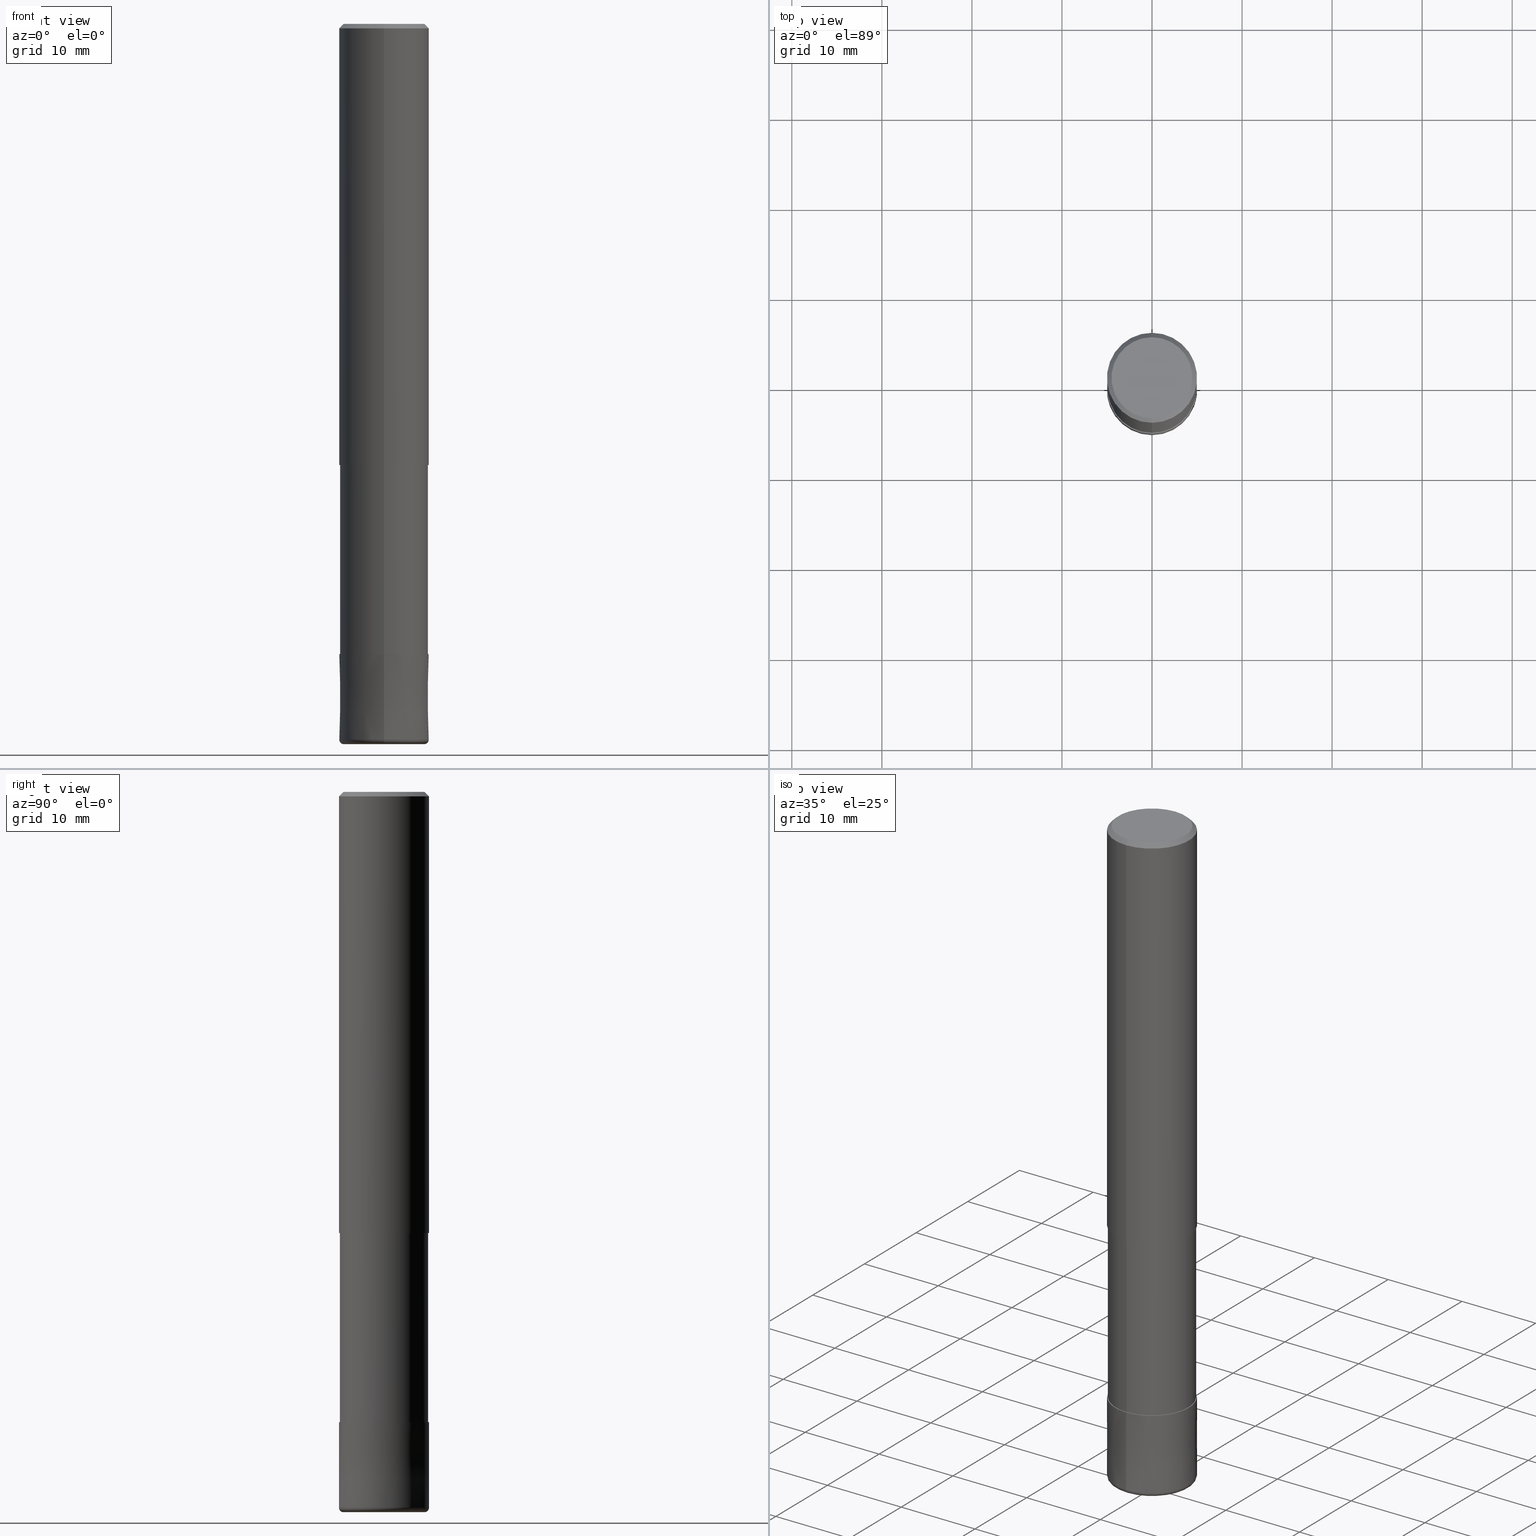
[diagram: canonical four-view strip — front | top / right | iso, engineering-drawing reading convention]
A machine part, canonical four-view strip (front | top / right | iso — engineering-drawing reading convention). The complete STEP part file that produces these views, byte-faithful:
ISO-10303-21;
HEADER;
FILE_DESCRIPTION(('no description'),'unknown implementation level');
FILE_NAME('HHRS6100-05-310-Huellk.stp','  ',('CIMSOURCE GmbH'),('CADClick - KiM GmbH - www.kimweb.de'),'unknown preprocess','ACIS','unknown authorization');
FILE_SCHEMA(('automotive_design'));
ENDSEC;
DATA;
#1=MECHANICAL_DESIGN_GEOMETRIC_PRESENTATION_REPRESENTATION(' ',(#14,#15,#16,#17,#18,#19,#20,#21,#22,#23,#24,#25,#26,#27,#28,#29,#30,#31,#32,#33,#34,#35,#36,#37,#38,#39,#40,#41,#42,#43,#44,#45,#46,#47,#48,#49,#50,#51,#52,#53,#54,#55,#56,#57,#58,#59,#60,#61,#62,#63,#64,#65,#66,#67,#68,#69,#70,#71,#72,#73,#74,#75,#76,#77,#78,#79,#80,#81,#82,#83,#84,#85,#86,#87,#88,#89,#90,#91,#92,#93,#94,#95,#96,#97),#10);
#2=PRODUCT_DEFINITION_CONTEXT('',#98,'design');
#3=APPLICATION_PROTOCOL_DEFINITION('INTERNATIONAL STANDARD','automotive_design',1994,#98);
#4=PRODUCT_CATEGORY_RELATIONSHIP('NONE','NONE',#99,#100);
#5=SHAPE_DEFINITION_REPRESENTATION(#101,#102);
#6=PRODUCT_DEFINITION_CONTEXT('',#103,'design');
#7=APPLICATION_PROTOCOL_DEFINITION('INTERNATIONAL STANDARD','automotive_design',1994,#103);
#8=PRODUCT_CATEGORY_RELATIONSHIP('NONE','NONE',#104,#105);
#9=SHAPE_DEFINITION_REPRESENTATION(#106,#107);
#10= (GEOMETRIC_REPRESENTATION_CONTEXT(3)GLOBAL_UNCERTAINTY_ASSIGNED_CONTEXT((#110))GLOBAL_UNIT_ASSIGNED_CONTEXT((#112,#113,#114))REPRESENTATION_CONTEXT('NONE','WORKSPACE'));
#14=STYLED_ITEM('',(#116),#117);
#15=STYLED_ITEM('',(#118),#119);
#16=STYLED_ITEM('',(#120),#121);
#17=STYLED_ITEM('',(#122),#123);
#18=STYLED_ITEM('',(#124),#125);
#19=STYLED_ITEM('',(#126),#127);
#20=STYLED_ITEM('',(#128),#129);
#21=STYLED_ITEM('',(#130),#131);
#22=STYLED_ITEM('',(#132),#133);
#23=STYLED_ITEM('',(#134),#135);
#24=STYLED_ITEM('',(#136),#137);
#25=STYLED_ITEM('',(#138),#139);
#26=STYLED_ITEM('',(#140),#141);
#27=STYLED_ITEM('',(#142),#143);
#28=STYLED_ITEM('',(#144),#145);
#29=STYLED_ITEM('',(#146),#147);
#30=STYLED_ITEM('',(#148),#149);
#31=STYLED_ITEM('',(#150),#151);
#32=STYLED_ITEM('',(#152),#153);
#33=STYLED_ITEM('',(#154),#155);
#34=STYLED_ITEM('',(#156),#157);
#35=STYLED_ITEM('',(#158),#159);
#36=STYLED_ITEM('',(#160),#161);
#37=STYLED_ITEM('',(#162),#163);
#38=STYLED_ITEM('',(#164),#165);
#39=STYLED_ITEM('',(#166),#167);
#40=STYLED_ITEM('',(#168),#169);
#41=STYLED_ITEM('',(#170),#171);
#42=STYLED_ITEM('',(#172),#173);
#43=STYLED_ITEM('',(#174),#175);
#44=STYLED_ITEM('',(#176),#177);
#45=STYLED_ITEM('',(#178),#179);
#46=STYLED_ITEM('',(#180),#181);
#47=STYLED_ITEM('',(#182),#183);
#48=STYLED_ITEM('',(#184),#185);
#49=STYLED_ITEM('',(#186),#187);
#50=STYLED_ITEM('',(#188),#189);
#51=STYLED_ITEM('',(#190),#191);
#52=STYLED_ITEM('',(#192),#193);
#53=STYLED_ITEM('',(#194),#195);
#54=STYLED_ITEM('',(#196),#197);
#55=STYLED_ITEM('',(#198),#199);
#56=STYLED_ITEM('',(#200),#201);
#57=STYLED_ITEM('',(#202),#203);
#58=STYLED_ITEM('',(#204),#205);
#59=STYLED_ITEM('',(#206),#207);
#60=STYLED_ITEM('',(#208),#209);
#61=STYLED_ITEM('',(#210),#211);
#62=STYLED_ITEM('',(#212),#213);
#63=STYLED_ITEM('',(#214),#215);
#64=STYLED_ITEM('',(#216),#217);
#65=STYLED_ITEM('',(#218),#219);
#66=STYLED_ITEM('',(#220),#221);
#67=STYLED_ITEM('',(#222),#223);
#68=STYLED_ITEM('',(#224),#225);
#69=STYLED_ITEM('',(#226),#227);
#70=STYLED_ITEM('',(#228),#229);
#71=STYLED_ITEM('',(#230),#231);
#72=STYLED_ITEM('',(#232),#233);
#73=STYLED_ITEM('',(#234),#235);
#74=STYLED_ITEM('',(#236),#237);
#75=STYLED_ITEM('',(#238),#239);
#76=STYLED_ITEM('',(#240),#241);
#77=STYLED_ITEM('',(#242),#243);
#78=STYLED_ITEM('',(#244),#245);
#79=STYLED_ITEM('',(#246),#247);
#80=STYLED_ITEM('',(#248),#249);
#81=STYLED_ITEM('',(#250),#251);
#82=STYLED_ITEM('',(#252),#253);
#83=STYLED_ITEM('',(#254),#255);
#84=STYLED_ITEM('',(#256),#257);
#85=STYLED_ITEM('',(#258),#259);
#86=STYLED_ITEM('',(#260),#261);
#87=STYLED_ITEM('',(#262),#263);
#88=STYLED_ITEM('',(#264),#265);
#89=STYLED_ITEM('',(#266),#267);
#90=STYLED_ITEM('',(#268),#269);
#91=STYLED_ITEM('',(#270),#271);
#92=STYLED_ITEM('',(#272),#273);
#93=STYLED_ITEM('',(#274),#275);
#94=STYLED_ITEM('',(#276),#277);
#95=STYLED_ITEM('',(#278),#279);
#96=STYLED_ITEM('',(#280),#281);
#97=STYLED_ITEM('',(#282),#283);
#98=APPLICATION_CONTEXT(' ');
#99=PRODUCT_CATEGORY('part','NONE');
#100=PRODUCT_RELATED_PRODUCT_CATEGORY('detail',' ',(#284));
#101=PRODUCT_DEFINITION_SHAPE('NONE','NONE',#285);
#102=ADVANCED_BREP_SHAPE_REPRESENTATION('1',(#125,#286),#10);
#103=APPLICATION_CONTEXT(' ');
#104=PRODUCT_CATEGORY('part','NONE');
#105=PRODUCT_RELATED_PRODUCT_CATEGORY('detail',' ',(#287));
#106=PRODUCT_DEFINITION_SHAPE('NONE','NONE',#288);
#107=ADVANCED_BREP_SHAPE_REPRESENTATION('2',(#223,#289),#10);
#110=UNCERTAINTY_MEASURE_WITH_UNIT(LENGTH_MEASURE(1.0E-006),#112,'','');
#112= (CONVERSION_BASED_UNIT('MILLIMETRE',#292)LENGTH_UNIT()NAMED_UNIT(#295));
#113= (NAMED_UNIT(#297)PLANE_ANGLE_UNIT()SI_UNIT($,.RADIAN.));
#114= (NAMED_UNIT(#297)SOLID_ANGLE_UNIT()SI_UNIT($,.STERADIAN.));
#116=PRESENTATION_STYLE_ASSIGNMENT((#303));
#117=VERTEX_POINT('',#304);
#118=PRESENTATION_STYLE_ASSIGNMENT((#305));
#119=VERTEX_POINT('',#306);
#120=PRESENTATION_STYLE_ASSIGNMENT((#307));
#121=EDGE_CURVE('',#151,#259,#308,.T.);
#122=PRESENTATION_STYLE_ASSIGNMENT((#309));
#123=ADVANCED_FACE('',(#310),#311,.T.);
#124=PRESENTATION_STYLE_ASSIGNMENT((#312));
#125=MANIFOLD_SOLID_BREP('1',#313);
#126=PRESENTATION_STYLE_ASSIGNMENT((#314));
#127=ADVANCED_FACE('',(#315),#316,.T.);
#128=PRESENTATION_STYLE_ASSIGNMENT((#317));
#129=ADVANCED_FACE('',(#318),#319,.T.);
#130=PRESENTATION_STYLE_ASSIGNMENT((#320));
#131=EDGE_CURVE('',#151,#273,#321,.T.);
#132=PRESENTATION_STYLE_ASSIGNMENT((#322));
#133=EDGE_CURVE('',#259,#151,#323,.T.);
#134=PRESENTATION_STYLE_ASSIGNMENT((#324));
#135=EDGE_CURVE('',#265,#235,#325,.T.);
#136=PRESENTATION_STYLE_ASSIGNMENT((#326));
#137=EDGE_CURVE('',#217,#259,#327,.T.);
#138=PRESENTATION_STYLE_ASSIGNMENT((#328));
#139=VERTEX_POINT('',#329);
#140=PRESENTATION_STYLE_ASSIGNMENT((#330));
#141=EDGE_CURVE('',#203,#241,#331,.T.);
#142=PRESENTATION_STYLE_ASSIGNMENT((#332));
#143=EDGE_CURVE('',#281,#173,#333,.T.);
#144=PRESENTATION_STYLE_ASSIGNMENT((#334));
#145=EDGE_CURVE('',#217,#273,#335,.T.);
#146=PRESENTATION_STYLE_ASSIGNMENT((#336));
#147=EDGE_CURVE('',#283,#241,#337,.T.);
#148=PRESENTATION_STYLE_ASSIGNMENT((#338));
#149=EDGE_CURVE('',#139,#205,#339,.T.);
#150=PRESENTATION_STYLE_ASSIGNMENT((#340));
#151=VERTEX_POINT('',#341);
#152=PRESENTATION_STYLE_ASSIGNMENT((#342));
#153=EDGE_CURVE('',#247,#279,#343,.T.);
#154=PRESENTATION_STYLE_ASSIGNMENT((#344));
#155=VERTEX_POINT('',#345);
#156=PRESENTATION_STYLE_ASSIGNMENT((#346));
#157=VERTEX_POINT('',#347);
#158=PRESENTATION_STYLE_ASSIGNMENT((#348));
#159=EDGE_CURVE('',#157,#235,#349,.T.);
#160=PRESENTATION_STYLE_ASSIGNMENT((#350));
#161=ADVANCED_FACE('',(#351),#352,.F.);
#162=PRESENTATION_STYLE_ASSIGNMENT((#353));
#163=EDGE_CURVE('',#279,#247,#354,.T.);
#164=PRESENTATION_STYLE_ASSIGNMENT((#355));
#165=ADVANCED_FACE('',(#356),#357,.T.);
#166=PRESENTATION_STYLE_ASSIGNMENT((#358));
#167=EDGE_CURVE('',#173,#281,#359,.T.);
#168=PRESENTATION_STYLE_ASSIGNMENT((#360));
#169=EDGE_CURVE('',#203,#187,#361,.T.);
#170=PRESENTATION_STYLE_ASSIGNMENT((#362));
#171=EDGE_CURVE('',#249,#157,#363,.T.);
#172=PRESENTATION_STYLE_ASSIGNMENT((#364));
#173=VERTEX_POINT('',#365);
#174=PRESENTATION_STYLE_ASSIGNMENT((#366));
#175=ADVANCED_FACE('',(#367),#368,.T.);
#176=PRESENTATION_STYLE_ASSIGNMENT((#369));
#177=VERTEX_POINT('',#370);
#178=PRESENTATION_STYLE_ASSIGNMENT((#371));
#179=EDGE_CURVE('',#117,#173,#372,.T.);
#180=PRESENTATION_STYLE_ASSIGNMENT((#373));
#181=ADVANCED_FACE('',(#374),#375,.T.);
#182=PRESENTATION_STYLE_ASSIGNMENT((#376));
#183=EDGE_CURVE('',#187,#283,#377,.T.);
#184=PRESENTATION_STYLE_ASSIGNMENT((#378));
#185=VERTEX_POINT('',#379);
#186=PRESENTATION_STYLE_ASSIGNMENT((#380));
#187=VERTEX_POINT('',#381);
#188=PRESENTATION_STYLE_ASSIGNMENT((#382));
#189=EDGE_CURVE('',#273,#155,#383,.T.);
#190=PRESENTATION_STYLE_ASSIGNMENT((#384));
#191=ADVANCED_FACE('',(#385),#386,.T.);
#192=PRESENTATION_STYLE_ASSIGNMENT((#387));
#193=EDGE_CURVE('',#119,#247,#388,.T.);
#194=PRESENTATION_STYLE_ASSIGNMENT((#389));
#195=EDGE_CURVE('',#117,#251,#390,.T.);
#196=PRESENTATION_STYLE_ASSIGNMENT((#391));
#197=EDGE_CURVE('',#283,#139,#392,.T.);
#198=PRESENTATION_STYLE_ASSIGNMENT((#393));
#199=EDGE_CURVE('',#119,#177,#394,.T.);
#200=PRESENTATION_STYLE_ASSIGNMENT((#395));
#201=EDGE_CURVE('',#265,#249,#396,.T.);
#202=PRESENTATION_STYLE_ASSIGNMENT((#397));
#203=VERTEX_POINT('',#398);
#204=PRESENTATION_STYLE_ASSIGNMENT((#399));
#205=VERTEX_POINT('',#400);
#206=PRESENTATION_STYLE_ASSIGNMENT((#401));
#207=EDGE_CURVE('',#283,#187,#402,.T.);
#208=PRESENTATION_STYLE_ASSIGNMENT((#403));
#209=ADVANCED_FACE('',(#404),#405,.T.);
#210=PRESENTATION_STYLE_ASSIGNMENT((#406));
#211=EDGE_CURVE('',#251,#117,#407,.T.);
#212=PRESENTATION_STYLE_ASSIGNMENT((#408));
#213=ADVANCED_FACE('',(#409,#410),#411,.T.);
#214=PRESENTATION_STYLE_ASSIGNMENT((#412));
#215=EDGE_CURVE('',#279,#177,#413,.T.);
#216=PRESENTATION_STYLE_ASSIGNMENT((#414));
#217=VERTEX_POINT('',#415);
#218=PRESENTATION_STYLE_ASSIGNMENT((#416));
#219=EDGE_CURVE('',#155,#185,#417,.T.);
#220=PRESENTATION_STYLE_ASSIGNMENT((#418));
#221=ADVANCED_FACE('',(#419),#420,.T.);
#222=PRESENTATION_STYLE_ASSIGNMENT((#421));
#223=MANIFOLD_SOLID_BREP('2',#422);
#224=PRESENTATION_STYLE_ASSIGNMENT((#423));
#225=EDGE_CURVE('',#177,#119,#424,.T.);
#226=PRESENTATION_STYLE_ASSIGNMENT((#425));
#227=EDGE_CURVE('',#185,#155,#426,.T.);
#228=PRESENTATION_STYLE_ASSIGNMENT((#427));
#229=ADVANCED_FACE('',(#428),#429,.T.);
#230=PRESENTATION_STYLE_ASSIGNMENT((#430));
#231=EDGE_CURVE('',#281,#251,#431,.T.);
#232=PRESENTATION_STYLE_ASSIGNMENT((#432));
#233=EDGE_CURVE('',#235,#265,#433,.T.);
#234=PRESENTATION_STYLE_ASSIGNMENT((#434));
#235=VERTEX_POINT('',#435);
#236=PRESENTATION_STYLE_ASSIGNMENT((#436));
#237=ADVANCED_FACE('',(#437,#438),#439,.T.);
#238=PRESENTATION_STYLE_ASSIGNMENT((#440));
#239=EDGE_CURVE('',#273,#217,#441,.T.);
#240=PRESENTATION_STYLE_ASSIGNMENT((#442));
#241=VERTEX_POINT('',#443);
#242=PRESENTATION_STYLE_ASSIGNMENT((#444));
#243=EDGE_CURVE('',#205,#187,#445,.T.);
#244=PRESENTATION_STYLE_ASSIGNMENT((#446));
#245=ADVANCED_FACE('',(#447,#448),#449,.T.);
#246=PRESENTATION_STYLE_ASSIGNMENT((#450));
#247=VERTEX_POINT('',#451);
#248=PRESENTATION_STYLE_ASSIGNMENT((#452));
#249=VERTEX_POINT('',#453);
#250=PRESENTATION_STYLE_ASSIGNMENT((#454));
#251=VERTEX_POINT('',#455);
#252=PRESENTATION_STYLE_ASSIGNMENT((#456));
#253=EDGE_CURVE('',#157,#249,#457,.T.);
#254=PRESENTATION_STYLE_ASSIGNMENT((#458));
#255=ADVANCED_FACE('',(#459),#460,.T.);
#256=PRESENTATION_STYLE_ASSIGNMENT((#461));
#257=ADVANCED_FACE('',(#462),#463,.T.);
#258=PRESENTATION_STYLE_ASSIGNMENT((#464));
#259=VERTEX_POINT('',#465);
#260=PRESENTATION_STYLE_ASSIGNMENT((#466));
#261=ADVANCED_FACE('',(#467),#468,.T.);
#262=PRESENTATION_STYLE_ASSIGNMENT((#469));
#263=ADVANCED_FACE('',(#470),#471,.T.);
#264=PRESENTATION_STYLE_ASSIGNMENT((#472));
#265=VERTEX_POINT('',#473);
#266=PRESENTATION_STYLE_ASSIGNMENT((#474));
#267=ADVANCED_FACE('',(#475),#476,.F.);
#268=PRESENTATION_STYLE_ASSIGNMENT((#477));
#269=EDGE_CURVE('',#241,#203,#478,.T.);
#270=PRESENTATION_STYLE_ASSIGNMENT((#479));
#271=ADVANCED_FACE('',(#480,#481),#482,.T.);
#272=PRESENTATION_STYLE_ASSIGNMENT((#483));
#273=VERTEX_POINT('',#484);
#274=PRESENTATION_STYLE_ASSIGNMENT((#485));
#275=EDGE_CURVE('',#185,#217,#486,.T.);
#276=PRESENTATION_STYLE_ASSIGNMENT((#487));
#277=EDGE_CURVE('',#205,#139,#488,.T.);
#278=PRESENTATION_STYLE_ASSIGNMENT((#489));
#279=VERTEX_POINT('',#490);
#280=PRESENTATION_STYLE_ASSIGNMENT((#491));
#281=VERTEX_POINT('',#492);
#282=PRESENTATION_STYLE_ASSIGNMENT((#493));
#283=VERTEX_POINT('',#494);
#284=PRODUCT('1','1','PART-1-DESC',(#495));
#285=PRODUCT_DEFINITION('NONE','NONE',#496,#2);
#286=AXIS2_PLACEMENT_3D('',#497,#498,#499);
#287=PRODUCT('2','2','PART-2-DESC',(#500));
#288=PRODUCT_DEFINITION('NONE','NONE',#501,#6);
#289=AXIS2_PLACEMENT_3D('',#502,#503,#504);
#292=LENGTH_MEASURE_WITH_UNIT(LENGTH_MEASURE(1.0),#505);
#295=DIMENSIONAL_EXPONENTS(1.0,0.0,0.0,0.0,0.0,0.0,0.0);
#297=DIMENSIONAL_EXPONENTS(0.0,0.0,0.0,0.0,0.0,0.0,0.0);
#303=POINT_STYLE(' ',#506,POSITIVE_LENGTH_MEASURE(1.0E-006),#507);
#304=CARTESIAN_POINT('',(0.0,4.90495,-49.0));
#305=POINT_STYLE(' ',#508,POSITIVE_LENGTH_MEASURE(1.0E-006),#509);
#306=CARTESIAN_POINT('',(2.75536429610035E-016,-2.25,-79.8));
#307=CURVE_STYLE('',#510,POSITIVE_LENGTH_MEASURE(1.0E-006),#511);
#308=CIRCLE('',#512,4.5);
#309=SURFACE_STYLE_USAGE(.BOTH.,#513);
#310=FACE_OUTER_BOUND('',#514,.T.);
#311=PLANE('',#515);
#312=SURFACE_STYLE_USAGE(.BOTH.,#516);
#313=CLOSED_SHELL('',(#263,#209,#257,#165,#271,#191,#255,#175,#261,#213,#129,#123));
#314=SURFACE_STYLE_USAGE(.BOTH.,#517);
#315=FACE_OUTER_BOUND('',#518,.T.);
#316=CONICAL_SURFACE('',#519,4.99995,1.05263157890604E-005);
#317=SURFACE_STYLE_USAGE(.BOTH.,#520);
#318=FACE_OUTER_BOUND('',#521,.T.);
#319=CYLINDRICAL_SURFACE('',#522,2.25);
#320=CURVE_STYLE('',#523,POSITIVE_LENGTH_MEASURE(1.0E-006),#524);
#321=LINE('',#525,#526);
#322=CURVE_STYLE('',#527,POSITIVE_LENGTH_MEASURE(1.0E-006),#528);
#323=CIRCLE('',#529,4.5);
#324=CURVE_STYLE('',#530,POSITIVE_LENGTH_MEASURE(1.0E-006),#531);
#325=CIRCLE('',#532,2.25);
#326=CURVE_STYLE('',#533,POSITIVE_LENGTH_MEASURE(1.0E-006),#534);
#327=LINE('',#535,#536);
#328=POINT_STYLE(' ',#537,POSITIVE_LENGTH_MEASURE(1.0E-006),#538);
#329=CARTESIAN_POINT('',(6.1229093084765E-016,-4.9999,-70.0));
#330=CURVE_STYLE('',#539,POSITIVE_LENGTH_MEASURE(1.0E-006),#540);
#331=CIRCLE('',#541,4.5);
#332=CURVE_STYLE('',#542,POSITIVE_LENGTH_MEASURE(1.0E-006),#543);
#333=CIRCLE('',#544,4.90495);
#334=CURVE_STYLE('',#545,POSITIVE_LENGTH_MEASURE(1.0E-006),#546);
#335=CIRCLE('',#547,5.0);
#336=CURVE_STYLE('',#548,POSITIVE_LENGTH_MEASURE(1.0E-006),#549);
#337=CIRCLE('',#550,0.499999999999995);
#338=CURVE_STYLE('',#551,POSITIVE_LENGTH_MEASURE(1.0E-006),#552);
#339=CIRCLE('',#553,4.9999);
#340=POINT_STYLE(' ',#554,POSITIVE_LENGTH_MEASURE(1.0E-006),#555);
#341=CARTESIAN_POINT('',(0.0,4.5,0.0));
#342=CURVE_STYLE('',#556,POSITIVE_LENGTH_MEASURE(1.0E-006),#557);
#343=CIRCLE('',#558,2.25);
#344=POINT_STYLE(' ',#559,POSITIVE_LENGTH_MEASURE(1.0E-006),#560);
#345=CARTESIAN_POINT('',(0.0,5.0,-49.0));
#346=POINT_STYLE(' ',#561,POSITIVE_LENGTH_MEASURE(1.0E-006),#562);
#347=CARTESIAN_POINT('',(2.75536429610035E-016,-2.25,-80.0));
#348=CURVE_STYLE('',#563,POSITIVE_LENGTH_MEASURE(1.0E-006),#564);
#349=LINE('',#565,#566);
#350=SURFACE_STYLE_USAGE(.BOTH.,#567);
#351=FACE_OUTER_BOUND('',#568,.T.);
#352=CYLINDRICAL_SURFACE('',#569,2.25);
#353=CURVE_STYLE('',#570,POSITIVE_LENGTH_MEASURE(1.0E-006),#571);
#354=CIRCLE('',#572,2.25);
#355=SURFACE_STYLE_USAGE(.BOTH.,#573);
#356=FACE_OUTER_BOUND('',#574,.T.);
#357=CONICAL_SURFACE('',#575,4.75,0.785398163397448);
#358=CURVE_STYLE('',#576,POSITIVE_LENGTH_MEASURE(1.0E-006),#577);
#359=CIRCLE('',#578,4.90495);
#360=CURVE_STYLE('',#579,POSITIVE_LENGTH_MEASURE(1.0E-006),#580);
#361=CIRCLE('',#581,0.499999999999995);
#362=CURVE_STYLE('',#582,POSITIVE_LENGTH_MEASURE(1.0E-006),#583);
#363=CIRCLE('',#584,2.25);
#364=POINT_STYLE(' ',#585,POSITIVE_LENGTH_MEASURE(1.0E-006),#586);
#365=CARTESIAN_POINT('',(0.0,4.90495,-70.0));
#366=SURFACE_STYLE_USAGE(.BOTH.,#587);
#367=FACE_OUTER_BOUND('',#588,.T.);
#368=CYLINDRICAL_SURFACE('',#589,5.0);
#369=POINT_STYLE(' ',#590,POSITIVE_LENGTH_MEASURE(1.0E-006),#591);
#370=CARTESIAN_POINT('',(0.0,2.25,-79.8));
#371=CURVE_STYLE('',#592,POSITIVE_LENGTH_MEASURE(1.0E-006),#593);
#372=LINE('',#594,#595);
#373=SURFACE_STYLE_USAGE(.BOTH.,#596);
#374=FACE_OUTER_BOUND('',#597,.T.);
#375=TOROIDAL_SURFACE('',#598,4.5,0.499999999999995);
#376=CURVE_STYLE('',#599,POSITIVE_LENGTH_MEASURE(1.0E-006),#600);
#377=CIRCLE('',#601,5.0);
#378=POINT_STYLE(' ',#602,POSITIVE_LENGTH_MEASURE(1.0E-006),#603);
#379=CARTESIAN_POINT('',(6.12303176911189E-016,-5.0,-49.0));
#380=POINT_STYLE(' ',#604,POSITIVE_LENGTH_MEASURE(1.0E-006),#605);
#381=CARTESIAN_POINT('',(0.0,5.0,-79.5));
#382=CURVE_STYLE('',#606,POSITIVE_LENGTH_MEASURE(1.0E-006),#607);
#383=LINE('',#608,#609);
#384=SURFACE_STYLE_USAGE(.BOTH.,#610);
#385=FACE_OUTER_BOUND('',#611,.T.);
#386=PLANE('',#612);
#387=CURVE_STYLE('',#613,POSITIVE_LENGTH_MEASURE(1.0E-006),#614);
#388=LINE('',#615,#616);
#389=CURVE_STYLE('',#617,POSITIVE_LENGTH_MEASURE(1.0E-006),#618);
#390=CIRCLE('',#619,4.90495);
#391=CURVE_STYLE('',#620,POSITIVE_LENGTH_MEASURE(1.0E-006),#621);
#392=LINE('',#622,#623);
#393=CURVE_STYLE('',#624,POSITIVE_LENGTH_MEASURE(1.0E-006),#625);
#394=CIRCLE('',#626,2.25);
#395=CURVE_STYLE('',#627,POSITIVE_LENGTH_MEASURE(1.0E-006),#628);
#396=LINE('',#629,#630);
#397=POINT_STYLE(' ',#631,POSITIVE_LENGTH_MEASURE(1.0E-006),#632);
#398=CARTESIAN_POINT('',(0.0,4.5,-80.0));
#399=POINT_STYLE(' ',#633,POSITIVE_LENGTH_MEASURE(1.0E-006),#634);
#400=CARTESIAN_POINT('',(0.0,4.9999,-70.0));
#401=CURVE_STYLE('',#635,POSITIVE_LENGTH_MEASURE(1.0E-006),#636);
#402=CIRCLE('',#637,5.0);
#403=SURFACE_STYLE_USAGE(.BOTH.,#638);
#404=FACE_OUTER_BOUND('',#639,.T.);
#405=CYLINDRICAL_SURFACE('',#640,4.90495);
#406=CURVE_STYLE('',#641,POSITIVE_LENGTH_MEASURE(1.0E-006),#642);
#407=CIRCLE('',#643,4.90495);
#408=SURFACE_STYLE_USAGE(.BOTH.,#644);
#409=FACE_BOUND('',#645,.T.);
#410=FACE_OUTER_BOUND('',#646,.T.);
#411=PLANE('',#647);
#412=CURVE_STYLE('',#648,POSITIVE_LENGTH_MEASURE(1.0E-006),#649);
#413=LINE('',#650,#651);
#414=POINT_STYLE(' ',#652,POSITIVE_LENGTH_MEASURE(1.0E-006),#653);
#415=CARTESIAN_POINT('',(6.12303176911189E-016,-5.0,-0.5));
#416=CURVE_STYLE('',#654,POSITIVE_LENGTH_MEASURE(1.0E-006),#655);
#417=CIRCLE('',#656,5.0);
#418=SURFACE_STYLE_USAGE(.BOTH.,#657);
#419=FACE_OUTER_BOUND('',#658,.T.);
#420=TOROIDAL_SURFACE('',#659,4.5,0.499999999999995);
#421=SURFACE_STYLE_USAGE(.BOTH.,#660);
#422=CLOSED_SHELL('',(#267,#181,#127,#245,#229,#221,#237,#161));
#423=CURVE_STYLE('',#661,POSITIVE_LENGTH_MEASURE(1.0E-006),#662);
#424=CIRCLE('',#663,2.25);
#425=CURVE_STYLE('',#664,POSITIVE_LENGTH_MEASURE(1.0E-006),#665);
#426=CIRCLE('',#666,5.0);
#427=SURFACE_STYLE_USAGE(.BOTH.,#667);
#428=FACE_OUTER_BOUND('',#668,.T.);
#429=CONICAL_SURFACE('',#669,4.99995,1.05263157890604E-005);
#430=CURVE_STYLE('',#670,POSITIVE_LENGTH_MEASURE(1.0E-006),#671);
#431=LINE('',#672,#673);
#432=CURVE_STYLE('',#674,POSITIVE_LENGTH_MEASURE(1.0E-006),#675);
#433=CIRCLE('',#676,2.25);
#434=POINT_STYLE(' ',#677,POSITIVE_LENGTH_MEASURE(1.0E-006),#678);
#435=CARTESIAN_POINT('',(2.75536429610035E-016,-2.25,-70.0));
#436=SURFACE_STYLE_USAGE(.BOTH.,#679);
#437=FACE_BOUND('',#680,.T.);
#438=FACE_OUTER_BOUND('',#681,.T.);
#439=PLANE('',#682);
#440=CURVE_STYLE('',#683,POSITIVE_LENGTH_MEASURE(1.0E-006),#684);
#441=CIRCLE('',#685,5.0);
#442=POINT_STYLE(' ',#686,POSITIVE_LENGTH_MEASURE(1.0E-006),#687);
#443=CARTESIAN_POINT('',(5.5107285922007E-016,-4.5,-80.0));
#444=CURVE_STYLE('',#688,POSITIVE_LENGTH_MEASURE(1.0E-006),#689);
#445=LINE('',#690,#691);
#446=SURFACE_STYLE_USAGE(.BOTH.,#692);
#447=FACE_OUTER_BOUND('',#693,.T.);
#448=FACE_BOUND('',#694,.T.);
#449=PLANE('',#695);
#450=POINT_STYLE(' ',#696,POSITIVE_LENGTH_MEASURE(1.0E-006),#697);
#451=CARTESIAN_POINT('',(2.75536429610035E-016,-2.25,-70.0));
#452=POINT_STYLE(' ',#698,POSITIVE_LENGTH_MEASURE(1.0E-006),#699);
#453=CARTESIAN_POINT('',(0.0,2.25,-80.0));
#454=POINT_STYLE(' ',#700,POSITIVE_LENGTH_MEASURE(1.0E-006),#701);
#455=CARTESIAN_POINT('',(6.00663293518107E-016,-4.90495,-49.0));
#456=CURVE_STYLE('',#702,POSITIVE_LENGTH_MEASURE(1.0E-006),#703);
#457=CIRCLE('',#704,2.25);
#458=SURFACE_STYLE_USAGE(.BOTH.,#705);
#459=FACE_OUTER_BOUND('',#706,.T.);
#460=CONICAL_SURFACE('',#707,4.75,0.785398163397448);
#461=SURFACE_STYLE_USAGE(.BOTH.,#708);
#462=FACE_OUTER_BOUND('',#709,.T.);
#463=CYLINDRICAL_SURFACE('',#710,5.0);
#464=POINT_STYLE(' ',#711,POSITIVE_LENGTH_MEASURE(1.0E-006),#712);
#465=CARTESIAN_POINT('',(5.5107285922007E-016,-4.5,0.0));
#466=SURFACE_STYLE_USAGE(.BOTH.,#713);
#467=FACE_OUTER_BOUND('',#714,.T.);
#468=CYLINDRICAL_SURFACE('',#715,4.90495);
#469=SURFACE_STYLE_USAGE(.BOTH.,#716);
#470=FACE_OUTER_BOUND('',#717,.T.);
#471=CYLINDRICAL_SURFACE('',#718,2.25);
#472=POINT_STYLE(' ',#719,POSITIVE_LENGTH_MEASURE(1.0E-006),#720);
#473=CARTESIAN_POINT('',(0.0,2.25,-70.0));
#474=SURFACE_STYLE_USAGE(.BOTH.,#721);
#475=FACE_OUTER_BOUND('',#722,.T.);
#476=CYLINDRICAL_SURFACE('',#723,2.25);
#477=CURVE_STYLE('',#724,POSITIVE_LENGTH_MEASURE(1.0E-006),#725);
#478=CIRCLE('',#726,4.5);
#479=SURFACE_STYLE_USAGE(.BOTH.,#727);
#480=FACE_OUTER_BOUND('',#728,.T.);
#481=FACE_BOUND('',#729,.T.);
#482=PLANE('',#730);
#483=POINT_STYLE(' ',#731,POSITIVE_LENGTH_MEASURE(1.0E-006),#732);
#484=CARTESIAN_POINT('',(0.0,5.0,-0.5));
#485=CURVE_STYLE('',#733,POSITIVE_LENGTH_MEASURE(1.0E-006),#734);
#486=LINE('',#735,#736);
#487=CURVE_STYLE('',#737,POSITIVE_LENGTH_MEASURE(1.0E-006),#738);
#488=CIRCLE('',#739,4.9999);
#489=POINT_STYLE(' ',#740,POSITIVE_LENGTH_MEASURE(1.0E-006),#741);
#490=CARTESIAN_POINT('',(0.0,2.25,-70.0));
#491=POINT_STYLE(' ',#742,POSITIVE_LENGTH_MEASURE(1.0E-006),#743);
#492=CARTESIAN_POINT('',(6.00663293518107E-016,-4.90495,-70.0));
#493=POINT_STYLE(' ',#744,POSITIVE_LENGTH_MEASURE(1.0E-006),#745);
#494=CARTESIAN_POINT('',(6.12303176911189E-016,-5.0,-79.5));
#495=PRODUCT_CONTEXT('',#98,'mechanical');
#496=PRODUCT_DEFINITION_FORMATION_WITH_SPECIFIED_SOURCE(' ','NONE',#284,.NOT_KNOWN.);
#497=CARTESIAN_POINT('',(0.0,0.0,0.0));
#498=DIRECTION('',(0.0,0.0,1.0));
#499=DIRECTION('',(1.0,0.0,0.0));
#500=PRODUCT_CONTEXT('',#103,'mechanical');
#501=PRODUCT_DEFINITION_FORMATION_WITH_SPECIFIED_SOURCE(' ','NONE',#287,.NOT_KNOWN.);
#502=CARTESIAN_POINT('',(0.0,0.0,0.0));
#503=DIRECTION('',(0.0,0.0,1.0));
#504=DIRECTION('',(1.0,0.0,0.0));
#505= (NAMED_UNIT(#295)LENGTH_UNIT()SI_UNIT(.MILLI.,.METRE.));
#506=PRE_DEFINED_MARKER('');
#507=COLOUR_RGB('',0.498039215803146,0.498039215803146,0.498039215803146);
#508=PRE_DEFINED_MARKER('');
#509=COLOUR_RGB('',0.498039215803146,0.498039215803146,0.498039215803146);
#510=DRAUGHTING_PRE_DEFINED_CURVE_FONT('continuous');
#511=COLOUR_RGB('',0.498039215803146,0.498039215803146,0.498039215803146);
#512=AXIS2_PLACEMENT_3D('',#747,#748,#749);
#513=SURFACE_SIDE_STYLE('',(#750));
#514=EDGE_LOOP('',(#751,#752));
#515=AXIS2_PLACEMENT_3D('',#753,#754,#755);
#516=SURFACE_SIDE_STYLE('',(#756));
#517=SURFACE_SIDE_STYLE('',(#757));
#518=EDGE_LOOP('',(#758,#759,#760,#761));
#519=AXIS2_PLACEMENT_3D('',#762,#763,#764);
#520=SURFACE_SIDE_STYLE('',(#765));
#521=EDGE_LOOP('',(#766,#767,#768,#769));
#522=AXIS2_PLACEMENT_3D('',#770,#771,#772);
#523=DRAUGHTING_PRE_DEFINED_CURVE_FONT('continuous');
#524=COLOUR_RGB('',0.498039215803146,0.498039215803146,0.498039215803146);
#525=CARTESIAN_POINT('',(-5.81688018065629E-016,4.75,-0.25));
#526=VECTOR('',#773,1.0);
#527=DRAUGHTING_PRE_DEFINED_CURVE_FONT('continuous');
#528=COLOUR_RGB('',0.498039215803146,0.498039215803146,0.498039215803146);
#529=AXIS2_PLACEMENT_3D('',#774,#775,#776);
#530=DRAUGHTING_PRE_DEFINED_CURVE_FONT('continuous');
#531=COLOUR_RGB('',0.800000011920929,0.800000011920929,0.800000011920929);
#532=AXIS2_PLACEMENT_3D('',#777,#778,#779);
#533=DRAUGHTING_PRE_DEFINED_CURVE_FONT('continuous');
#534=COLOUR_RGB('',0.498039215803146,0.498039215803146,0.498039215803146);
#535=CARTESIAN_POINT('',(5.81688018065629E-016,-4.75,-0.25));
#536=VECTOR('',#780,1.0);
#537=PRE_DEFINED_MARKER('');
#538=COLOUR_RGB('',0.800000011920929,0.800000011920929,0.800000011920929);
#539=DRAUGHTING_PRE_DEFINED_CURVE_FONT('continuous');
#540=COLOUR_RGB('',0.800000011920929,0.800000011920929,0.800000011920929);
#541=AXIS2_PLACEMENT_3D('',#781,#782,#783);
#542=DRAUGHTING_PRE_DEFINED_CURVE_FONT('continuous');
#543=COLOUR_RGB('',0.498039215803146,0.498039215803146,0.498039215803146);
#544=AXIS2_PLACEMENT_3D('',#784,#785,#786);
#545=DRAUGHTING_PRE_DEFINED_CURVE_FONT('continuous');
#546=COLOUR_RGB('',0.498039215803146,0.498039215803146,0.498039215803146);
#547=AXIS2_PLACEMENT_3D('',#787,#788,#789);
#548=DRAUGHTING_PRE_DEFINED_CURVE_FONT('continuous');
#549=COLOUR_RGB('',0.800000011920929,0.800000011920929,0.800000011920929);
#550=AXIS2_PLACEMENT_3D('',#790,#791,#792);
#551=DRAUGHTING_PRE_DEFINED_CURVE_FONT('continuous');
#552=COLOUR_RGB('',0.800000011920929,0.800000011920929,0.800000011920929);
#553=AXIS2_PLACEMENT_3D('',#793,#794,#795);
#554=PRE_DEFINED_MARKER('');
#555=COLOUR_RGB('',0.498039215803146,0.498039215803146,0.498039215803146);
#556=DRAUGHTING_PRE_DEFINED_CURVE_FONT('continuous');
#557=COLOUR_RGB('',0.498039215803146,0.498039215803146,0.498039215803146);
#558=AXIS2_PLACEMENT_3D('',#796,#797,#798);
#559=PRE_DEFINED_MARKER('');
#560=COLOUR_RGB('',0.498039215803146,0.498039215803146,0.498039215803146);
#561=PRE_DEFINED_MARKER('');
#562=COLOUR_RGB('',0.800000011920929,0.800000011920929,0.800000011920929);
#563=DRAUGHTING_PRE_DEFINED_CURVE_FONT('continuous');
#564=COLOUR_RGB('',0.800000011920929,0.800000011920929,0.800000011920929);
#565=CARTESIAN_POINT('',(2.75536429610035E-016,-2.25,-75.0));
#566=VECTOR('',#799,1.0);
#567=SURFACE_SIDE_STYLE('',(#800));
#568=EDGE_LOOP('',(#801,#802,#803,#804));
#569=AXIS2_PLACEMENT_3D('',#805,#806,#807);
#570=DRAUGHTING_PRE_DEFINED_CURVE_FONT('continuous');
#571=COLOUR_RGB('',0.498039215803146,0.498039215803146,0.498039215803146);
#572=AXIS2_PLACEMENT_3D('',#808,#809,#810);
#573=SURFACE_SIDE_STYLE('',(#811));
#574=EDGE_LOOP('',(#812,#813,#814,#815));
#575=AXIS2_PLACEMENT_3D('',#816,#817,#818);
#576=DRAUGHTING_PRE_DEFINED_CURVE_FONT('continuous');
#577=COLOUR_RGB('',0.498039215803146,0.498039215803146,0.498039215803146);
#578=AXIS2_PLACEMENT_3D('',#819,#820,#821);
#579=DRAUGHTING_PRE_DEFINED_CURVE_FONT('continuous');
#580=COLOUR_RGB('',0.800000011920929,0.800000011920929,0.800000011920929);
#581=AXIS2_PLACEMENT_3D('',#822,#823,#824);
#582=DRAUGHTING_PRE_DEFINED_CURVE_FONT('continuous');
#583=COLOUR_RGB('',0.800000011920929,0.800000011920929,0.800000011920929);
#584=AXIS2_PLACEMENT_3D('',#825,#826,#827);
#585=PRE_DEFINED_MARKER('');
#586=COLOUR_RGB('',0.498039215803146,0.498039215803146,0.498039215803146);
#587=SURFACE_SIDE_STYLE('',(#828));
#588=EDGE_LOOP('',(#829,#830,#831,#832));
#589=AXIS2_PLACEMENT_3D('',#833,#834,#835);
#590=PRE_DEFINED_MARKER('');
#591=COLOUR_RGB('',0.498039215803146,0.498039215803146,0.498039215803146);
#592=DRAUGHTING_PRE_DEFINED_CURVE_FONT('continuous');
#593=COLOUR_RGB('',0.498039215803146,0.498039215803146,0.498039215803146);
#594=CARTESIAN_POINT('',(-6.00663293518107E-016,4.90495,-59.5));
#595=VECTOR('',#836,1.0);
#596=SURFACE_SIDE_STYLE('',(#837));
#597=EDGE_LOOP('',(#838,#839,#840,#841));
#598=AXIS2_PLACEMENT_3D('',#842,#843,#844);
#599=DRAUGHTING_PRE_DEFINED_CURVE_FONT('continuous');
#600=COLOUR_RGB('',0.800000011920929,0.800000011920929,0.800000011920929);
#601=AXIS2_PLACEMENT_3D('',#845,#846,#847);
#602=PRE_DEFINED_MARKER('');
#603=COLOUR_RGB('',0.498039215803146,0.498039215803146,0.498039215803146);
#604=PRE_DEFINED_MARKER('');
#605=COLOUR_RGB('',0.800000011920929,0.800000011920929,0.800000011920929);
#606=DRAUGHTING_PRE_DEFINED_CURVE_FONT('continuous');
#607=COLOUR_RGB('',0.498039215803146,0.498039215803146,0.498039215803146);
#608=CARTESIAN_POINT('',(-6.12303176911189E-016,5.0,-24.75));
#609=VECTOR('',#848,1.0);
#610=SURFACE_SIDE_STYLE('',(#849));
#611=EDGE_LOOP('',(#850,#851));
#612=AXIS2_PLACEMENT_3D('',#852,#853,#854);
#613=DRAUGHTING_PRE_DEFINED_CURVE_FONT('continuous');
#614=COLOUR_RGB('',0.498039215803146,0.498039215803146,0.498039215803146);
#615=CARTESIAN_POINT('',(2.75536429610035E-016,-2.25,-74.9));
#616=VECTOR('',#855,1.0);
#617=DRAUGHTING_PRE_DEFINED_CURVE_FONT('continuous');
#618=COLOUR_RGB('',0.498039215803146,0.498039215803146,0.498039215803146);
#619=AXIS2_PLACEMENT_3D('',#856,#857,#858);
#620=DRAUGHTING_PRE_DEFINED_CURVE_FONT('continuous');
#621=COLOUR_RGB('',0.800000011920929,0.800000011920929,0.800000011920929);
#622=CARTESIAN_POINT('',(6.1229705387942E-016,-4.99995,-74.75));
#623=VECTOR('',#859,1.0);
#624=DRAUGHTING_PRE_DEFINED_CURVE_FONT('continuous');
#625=COLOUR_RGB('',0.498039215803146,0.498039215803146,0.498039215803146);
#626=AXIS2_PLACEMENT_3D('',#860,#861,#862);
#627=DRAUGHTING_PRE_DEFINED_CURVE_FONT('continuous');
#628=COLOUR_RGB('',0.800000011920929,0.800000011920929,0.800000011920929);
#629=CARTESIAN_POINT('',(-2.75536429610035E-016,2.25,-75.0));
#630=VECTOR('',#863,1.0);
#631=PRE_DEFINED_MARKER('');
#632=COLOUR_RGB('',0.800000011920929,0.800000011920929,0.800000011920929);
#633=PRE_DEFINED_MARKER('');
#634=COLOUR_RGB('',0.800000011920929,0.800000011920929,0.800000011920929);
#635=DRAUGHTING_PRE_DEFINED_CURVE_FONT('continuous');
#636=COLOUR_RGB('',0.800000011920929,0.800000011920929,0.800000011920929);
#637=AXIS2_PLACEMENT_3D('',#864,#865,#866);
#638=SURFACE_SIDE_STYLE('',(#867));
#639=EDGE_LOOP('',(#868,#869,#870,#871));
#640=AXIS2_PLACEMENT_3D('',#872,#873,#874);
#641=DRAUGHTING_PRE_DEFINED_CURVE_FONT('continuous');
#642=COLOUR_RGB('',0.498039215803146,0.498039215803146,0.498039215803146);
#643=AXIS2_PLACEMENT_3D('',#875,#876,#877);
#644=SURFACE_SIDE_STYLE('',(#878));
#645=EDGE_LOOP('',(#879,#880));
#646=EDGE_LOOP('',(#881,#882));
#647=AXIS2_PLACEMENT_3D('',#883,#884,#885);
#648=DRAUGHTING_PRE_DEFINED_CURVE_FONT('continuous');
#649=COLOUR_RGB('',0.498039215803146,0.498039215803146,0.498039215803146);
#650=CARTESIAN_POINT('',(-2.75536429610035E-016,2.25,-74.9));
#651=VECTOR('',#886,1.0);
#652=PRE_DEFINED_MARKER('');
#653=COLOUR_RGB('',0.498039215803146,0.498039215803146,0.498039215803146);
#654=DRAUGHTING_PRE_DEFINED_CURVE_FONT('continuous');
#655=COLOUR_RGB('',0.498039215803146,0.498039215803146,0.498039215803146);
#656=AXIS2_PLACEMENT_3D('',#887,#888,#889);
#657=SURFACE_SIDE_STYLE('',(#890));
#658=EDGE_LOOP('',(#891,#892,#893,#894));
#659=AXIS2_PLACEMENT_3D('',#895,#896,#897);
#660=SURFACE_SIDE_STYLE('',(#898));
#661=DRAUGHTING_PRE_DEFINED_CURVE_FONT('continuous');
#662=COLOUR_RGB('',0.498039215803146,0.498039215803146,0.498039215803146);
#663=AXIS2_PLACEMENT_3D('',#899,#900,#901);
#664=DRAUGHTING_PRE_DEFINED_CURVE_FONT('continuous');
#665=COLOUR_RGB('',0.498039215803146,0.498039215803146,0.498039215803146);
#666=AXIS2_PLACEMENT_3D('',#902,#903,#904);
#667=SURFACE_SIDE_STYLE('',(#905));
#668=EDGE_LOOP('',(#906,#907,#908,#909));
#669=AXIS2_PLACEMENT_3D('',#910,#911,#912);
#670=DRAUGHTING_PRE_DEFINED_CURVE_FONT('continuous');
#671=COLOUR_RGB('',0.498039215803146,0.498039215803146,0.498039215803146);
#672=CARTESIAN_POINT('',(6.00663293518107E-016,-4.90495,-59.5));
#673=VECTOR('',#913,1.0);
#674=DRAUGHTING_PRE_DEFINED_CURVE_FONT('continuous');
#675=COLOUR_RGB('',0.800000011920929,0.800000011920929,0.800000011920929);
#676=AXIS2_PLACEMENT_3D('',#914,#915,#916);
#677=PRE_DEFINED_MARKER('');
#678=COLOUR_RGB('',0.800000011920929,0.800000011920929,0.800000011920929);
#679=SURFACE_SIDE_STYLE('',(#917));
#680=EDGE_LOOP('',(#918,#919));
#681=EDGE_LOOP('',(#920,#921));
#682=AXIS2_PLACEMENT_3D('',#922,#923,#924);
#683=DRAUGHTING_PRE_DEFINED_CURVE_FONT('continuous');
#684=COLOUR_RGB('',0.498039215803146,0.498039215803146,0.498039215803146);
#685=AXIS2_PLACEMENT_3D('',#925,#926,#927);
#686=PRE_DEFINED_MARKER('');
#687=COLOUR_RGB('',0.800000011920929,0.800000011920929,0.800000011920929);
#688=DRAUGHTING_PRE_DEFINED_CURVE_FONT('continuous');
#689=COLOUR_RGB('',0.800000011920929,0.800000011920929,0.800000011920929);
#690=CARTESIAN_POINT('',(-6.1229705387942E-016,4.99995,-74.75));
#691=VECTOR('',#928,1.0);
#692=SURFACE_SIDE_STYLE('',(#929));
#693=EDGE_LOOP('',(#930,#931));
#694=EDGE_LOOP('',(#932,#933));
#695=AXIS2_PLACEMENT_3D('',#934,#935,#936);
#696=PRE_DEFINED_MARKER('');
#697=COLOUR_RGB('',0.498039215803146,0.498039215803146,0.498039215803146);
#698=PRE_DEFINED_MARKER('');
#699=COLOUR_RGB('',0.800000011920929,0.800000011920929,0.800000011920929);
#700=PRE_DEFINED_MARKER('');
#701=COLOUR_RGB('',0.498039215803146,0.498039215803146,0.498039215803146);
#702=DRAUGHTING_PRE_DEFINED_CURVE_FONT('continuous');
#703=COLOUR_RGB('',0.800000011920929,0.800000011920929,0.800000011920929);
#704=AXIS2_PLACEMENT_3D('',#937,#938,#939);
#705=SURFACE_SIDE_STYLE('',(#940));
#706=EDGE_LOOP('',(#941,#942,#943,#944));
#707=AXIS2_PLACEMENT_3D('',#945,#946,#947);
#708=SURFACE_SIDE_STYLE('',(#948));
#709=EDGE_LOOP('',(#949,#950,#951,#952));
#710=AXIS2_PLACEMENT_3D('',#953,#954,#955);
#711=PRE_DEFINED_MARKER('');
#712=COLOUR_RGB('',0.498039215803146,0.498039215803146,0.498039215803146);
#713=SURFACE_SIDE_STYLE('',(#956));
#714=EDGE_LOOP('',(#957,#958,#959,#960));
#715=AXIS2_PLACEMENT_3D('',#961,#962,#963);
#716=SURFACE_SIDE_STYLE('',(#964));
#717=EDGE_LOOP('',(#965,#966,#967,#968));
#718=AXIS2_PLACEMENT_3D('',#969,#970,#971);
#719=PRE_DEFINED_MARKER('');
#720=COLOUR_RGB('',0.800000011920929,0.800000011920929,0.800000011920929);
#721=SURFACE_SIDE_STYLE('',(#972));
#722=EDGE_LOOP('',(#973,#974,#975,#976));
#723=AXIS2_PLACEMENT_3D('',#977,#978,#979);
#724=DRAUGHTING_PRE_DEFINED_CURVE_FONT('continuous');
#725=COLOUR_RGB('',0.800000011920929,0.800000011920929,0.800000011920929);
#726=AXIS2_PLACEMENT_3D('',#980,#981,#982);
#727=SURFACE_SIDE_STYLE('',(#983));
#728=EDGE_LOOP('',(#984,#985));
#729=EDGE_LOOP('',(#986,#987));
#730=AXIS2_PLACEMENT_3D('',#988,#989,#990);
#731=PRE_DEFINED_MARKER('');
#732=COLOUR_RGB('',0.498039215803146,0.498039215803146,0.498039215803146);
#733=DRAUGHTING_PRE_DEFINED_CURVE_FONT('continuous');
#734=COLOUR_RGB('',0.498039215803146,0.498039215803146,0.498039215803146);
#735=CARTESIAN_POINT('',(6.12303176911189E-016,-5.0,-24.75));
#736=VECTOR('',#991,1.0);
#737=DRAUGHTING_PRE_DEFINED_CURVE_FONT('continuous');
#738=COLOUR_RGB('',0.800000011920929,0.800000011920929,0.800000011920929);
#739=AXIS2_PLACEMENT_3D('',#992,#993,#994);
#740=PRE_DEFINED_MARKER('');
#741=COLOUR_RGB('',0.498039215803146,0.498039215803146,0.498039215803146);
#742=PRE_DEFINED_MARKER('');
#743=COLOUR_RGB('',0.498039215803146,0.498039215803146,0.498039215803146);
#744=PRE_DEFINED_MARKER('');
#745=COLOUR_RGB('',0.800000011920929,0.800000011920929,0.800000011920929);
#747=CARTESIAN_POINT('',(0.0,0.0,0.0));
#748=DIRECTION('',(0.0,0.0,-1.0));
#749=DIRECTION('',(0.0,1.0,0.0));
#750=SURFACE_STYLE_FILL_AREA(#995);
#751=ORIENTED_EDGE('',*,*,#225,.T.);
#752=ORIENTED_EDGE('',*,*,#199,.T.);
#753=CARTESIAN_POINT('',(0.0,1.125,-79.8));
#754=DIRECTION('',(0.0,0.0,-1.0));
#755=DIRECTION('',(0.0,1.0,0.0));
#756=SURFACE_STYLE_FILL_AREA(#996);
#757=SURFACE_STYLE_FILL_AREA(#997);
#758=ORIENTED_EDGE('',*,*,#243,.F.);
#759=ORIENTED_EDGE('',*,*,#277,.T.);
#760=ORIENTED_EDGE('',*,*,#197,.F.);
#761=ORIENTED_EDGE('',*,*,#183,.F.);
#762=CARTESIAN_POINT('',(0.0,0.0,-74.75));
#763=DIRECTION('',(0.0,-0.0,-1.0));
#764=DIRECTION('',(0.0,1.0,0.0));
#765=SURFACE_STYLE_FILL_AREA(#998);
#766=ORIENTED_EDGE('',*,*,#215,.T.);
#767=ORIENTED_EDGE('',*,*,#199,.F.);
#768=ORIENTED_EDGE('',*,*,#193,.T.);
#769=ORIENTED_EDGE('',*,*,#153,.T.);
#770=CARTESIAN_POINT('',(0.0,0.0,-74.9));
#771=DIRECTION('',(-0.0,-0.0,1.0));
#772=DIRECTION('',(0.0,1.0,0.0));
#773=DIRECTION('',(-8.65927457071936E-017,0.707106781186548,-0.707106781186548));
#774=CARTESIAN_POINT('',(0.0,0.0,0.0));
#775=DIRECTION('',(0.0,0.0,-1.0));
#776=DIRECTION('',(0.0,1.0,0.0));
#777=CARTESIAN_POINT('',(0.0,0.0,-70.0));
#778=DIRECTION('',(0.0,0.0,-1.0));
#779=DIRECTION('',(0.0,1.0,0.0));
#780=DIRECTION('',(-8.65927457071936E-017,0.707106781186548,0.707106781186548));
#781=CARTESIAN_POINT('',(0.0,0.0,-80.0));
#782=DIRECTION('',(0.0,0.0,-1.0));
#783=DIRECTION('',(0.0,1.0,0.0));
#784=CARTESIAN_POINT('',(0.0,0.0,-70.0));
#785=DIRECTION('',(0.0,0.0,-1.0));
#786=DIRECTION('',(0.0,1.0,0.0));
#787=CARTESIAN_POINT('',(0.0,0.0,-0.5));
#788=DIRECTION('',(0.0,0.0,-1.0));
#789=DIRECTION('',(0.0,1.0,0.0));
#790=CARTESIAN_POINT('',(5.5107285922007E-016,-4.5,-79.5));
#791=DIRECTION('',(1.0,1.22460635382238E-016,0.0));
#792=DIRECTION('',(1.22460635382238E-016,-1.0,-0.0));
#793=CARTESIAN_POINT('',(0.0,0.0,-70.0));
#794=DIRECTION('',(0.0,0.0,-1.0));
#795=DIRECTION('',(0.0,1.0,0.0));
#796=CARTESIAN_POINT('',(0.0,0.0,-70.0));
#797=DIRECTION('',(0.0,0.0,-1.0));
#798=DIRECTION('',(0.0,1.0,0.0));
#799=DIRECTION('',(0.0,-0.0,1.0));
#800=SURFACE_STYLE_FILL_AREA(#999);
#801=ORIENTED_EDGE('',*,*,#201,.T.);
#802=ORIENTED_EDGE('',*,*,#171,.T.);
#803=ORIENTED_EDGE('',*,*,#159,.T.);
#804=ORIENTED_EDGE('',*,*,#135,.F.);
#805=CARTESIAN_POINT('',(0.0,0.0,-75.0));
#806=DIRECTION('',(-0.0,-0.0,1.0));
#807=DIRECTION('',(0.0,1.0,0.0));
#808=CARTESIAN_POINT('',(0.0,0.0,-70.0));
#809=DIRECTION('',(0.0,0.0,-1.0));
#810=DIRECTION('',(0.0,1.0,0.0));
#811=SURFACE_STYLE_FILL_AREA(#1000);
#812=ORIENTED_EDGE('',*,*,#131,.F.);
#813=ORIENTED_EDGE('',*,*,#121,.T.);
#814=ORIENTED_EDGE('',*,*,#137,.F.);
#815=ORIENTED_EDGE('',*,*,#239,.F.);
#816=CARTESIAN_POINT('',(0.0,0.0,-0.25));
#817=DIRECTION('',(0.0,-0.0,-1.0));
#818=DIRECTION('',(0.0,1.0,0.0));
#819=CARTESIAN_POINT('',(0.0,0.0,-70.0));
#820=DIRECTION('',(0.0,0.0,-1.0));
#821=DIRECTION('',(0.0,1.0,0.0));
#822=CARTESIAN_POINT('',(-5.5107285922007E-016,4.5,-79.5));
#823=DIRECTION('',(1.0,1.22460635382238E-016,0.0));
#824=DIRECTION('',(-1.22460635382238E-016,1.0,0.0));
#825=CARTESIAN_POINT('',(0.0,0.0,-80.0));
#826=DIRECTION('',(0.0,0.0,-1.0));
#827=DIRECTION('',(0.0,1.0,0.0));
#828=SURFACE_STYLE_FILL_AREA(#1001);
#829=ORIENTED_EDGE('',*,*,#189,.T.);
#830=ORIENTED_EDGE('',*,*,#227,.F.);
#831=ORIENTED_EDGE('',*,*,#275,.T.);
#832=ORIENTED_EDGE('',*,*,#145,.T.);
#833=CARTESIAN_POINT('',(0.0,0.0,-24.75));
#834=DIRECTION('',(-0.0,-0.0,1.0));
#835=DIRECTION('',(0.0,1.0,0.0));
#836=DIRECTION('',(0.0,0.0,-1.0));
#837=SURFACE_STYLE_FILL_AREA(#1002);
#838=ORIENTED_EDGE('',*,*,#147,.F.);
#839=ORIENTED_EDGE('',*,*,#207,.T.);
#840=ORIENTED_EDGE('',*,*,#169,.F.);
#841=ORIENTED_EDGE('',*,*,#269,.F.);
#842=CARTESIAN_POINT('',(0.0,0.0,-79.5));
#843=DIRECTION('',(0.0,0.0,-1.0));
#844=DIRECTION('',(0.0,-1.0,0.0));
#845=CARTESIAN_POINT('',(0.0,0.0,-79.5));
#846=DIRECTION('',(0.0,0.0,-1.0));
#847=DIRECTION('',(0.0,1.0,0.0));
#848=DIRECTION('',(0.0,0.0,-1.0));
#849=SURFACE_STYLE_FILL_AREA(#1003);
#850=ORIENTED_EDGE('',*,*,#121,.F.);
#851=ORIENTED_EDGE('',*,*,#133,.F.);
#852=CARTESIAN_POINT('',(0.0,2.25,0.0));
#853=DIRECTION('',(-0.0,0.0,1.0));
#854=DIRECTION('',(0.0,-1.0,0.0));
#855=DIRECTION('',(-0.0,-0.0,1.0));
#856=CARTESIAN_POINT('',(0.0,0.0,-49.0));
#857=DIRECTION('',(0.0,0.0,-1.0));
#858=DIRECTION('',(0.0,1.0,0.0));
#859=DIRECTION('',(-1.28905931973861E-021,1.0526315788866E-005,0.999999999944598));
#860=CARTESIAN_POINT('',(0.0,0.0,-79.8));
#861=DIRECTION('',(0.0,0.0,-1.0));
#862=DIRECTION('',(0.0,1.0,0.0));
#863=DIRECTION('',(0.0,-0.0,-1.0));
#864=CARTESIAN_POINT('',(0.0,0.0,-79.5));
#865=DIRECTION('',(0.0,0.0,-1.0));
#866=DIRECTION('',(0.0,1.0,0.0));
#867=SURFACE_STYLE_FILL_AREA(#1004);
#868=ORIENTED_EDGE('',*,*,#179,.F.);
#869=ORIENTED_EDGE('',*,*,#195,.T.);
#870=ORIENTED_EDGE('',*,*,#231,.F.);
#871=ORIENTED_EDGE('',*,*,#167,.F.);
#872=CARTESIAN_POINT('',(0.0,0.0,-59.5));
#873=DIRECTION('',(-0.0,-0.0,1.0));
#874=DIRECTION('',(0.0,1.0,0.0));
#875=CARTESIAN_POINT('',(0.0,0.0,-49.0));
#876=DIRECTION('',(0.0,0.0,-1.0));
#877=DIRECTION('',(0.0,1.0,0.0));
#878=SURFACE_STYLE_FILL_AREA(#1005);
#879=ORIENTED_EDGE('',*,*,#163,.F.);
#880=ORIENTED_EDGE('',*,*,#153,.F.);
#881=ORIENTED_EDGE('',*,*,#167,.T.);
#882=ORIENTED_EDGE('',*,*,#143,.T.);
#883=CARTESIAN_POINT('',(0.0,3.577475,-70.0));
#884=DIRECTION('',(0.0,0.0,-1.0));
#885=DIRECTION('',(0.0,1.0,0.0));
#886=DIRECTION('',(0.0,0.0,-1.0));
#887=CARTESIAN_POINT('',(0.0,0.0,-49.0));
#888=DIRECTION('',(0.0,0.0,-1.0));
#889=DIRECTION('',(0.0,1.0,0.0));
#890=SURFACE_STYLE_FILL_AREA(#1006);
#891=ORIENTED_EDGE('',*,*,#147,.T.);
#892=ORIENTED_EDGE('',*,*,#141,.F.);
#893=ORIENTED_EDGE('',*,*,#169,.T.);
#894=ORIENTED_EDGE('',*,*,#183,.T.);
#895=CARTESIAN_POINT('',(0.0,0.0,-79.5));
#896=DIRECTION('',(0.0,0.0,-1.0));
#897=DIRECTION('',(0.0,-1.0,0.0));
#898=SURFACE_STYLE_FILL_AREA(#1007);
#899=CARTESIAN_POINT('',(0.0,0.0,-79.8));
#900=DIRECTION('',(0.0,0.0,-1.0));
#901=DIRECTION('',(0.0,1.0,0.0));
#902=CARTESIAN_POINT('',(0.0,0.0,-49.0));
#903=DIRECTION('',(0.0,0.0,-1.0));
#904=DIRECTION('',(0.0,1.0,0.0));
#905=SURFACE_STYLE_FILL_AREA(#1008);
#906=ORIENTED_EDGE('',*,*,#243,.T.);
#907=ORIENTED_EDGE('',*,*,#207,.F.);
#908=ORIENTED_EDGE('',*,*,#197,.T.);
#909=ORIENTED_EDGE('',*,*,#149,.T.);
#910=CARTESIAN_POINT('',(0.0,0.0,-74.75));
#911=DIRECTION('',(0.0,-0.0,-1.0));
#912=DIRECTION('',(0.0,1.0,0.0));
#913=DIRECTION('',(-0.0,-0.0,1.0));
#914=CARTESIAN_POINT('',(0.0,0.0,-70.0));
#915=DIRECTION('',(0.0,0.0,-1.0));
#916=DIRECTION('',(0.0,1.0,0.0));
#917=SURFACE_STYLE_FILL_AREA(#1009);
#918=ORIENTED_EDGE('',*,*,#171,.F.);
#919=ORIENTED_EDGE('',*,*,#253,.F.);
#920=ORIENTED_EDGE('',*,*,#141,.T.);
#921=ORIENTED_EDGE('',*,*,#269,.T.);
#922=CARTESIAN_POINT('',(0.0,3.375,-80.0));
#923=DIRECTION('',(0.0,0.0,-1.0));
#924=DIRECTION('',(0.0,1.0,0.0));
#925=CARTESIAN_POINT('',(0.0,0.0,-0.5));
#926=DIRECTION('',(0.0,0.0,-1.0));
#927=DIRECTION('',(0.0,1.0,0.0));
#928=DIRECTION('',(-1.28905931973861E-021,1.0526315788866E-005,-0.999999999944598));
#929=SURFACE_STYLE_FILL_AREA(#1010);
#930=ORIENTED_EDGE('',*,*,#277,.F.);
#931=ORIENTED_EDGE('',*,*,#149,.F.);
#932=ORIENTED_EDGE('',*,*,#135,.T.);
#933=ORIENTED_EDGE('',*,*,#233,.T.);
#934=CARTESIAN_POINT('',(0.0,3.62495,-70.0));
#935=DIRECTION('',(-0.0,0.0,1.0));
#936=DIRECTION('',(0.0,-1.0,0.0));
#937=CARTESIAN_POINT('',(0.0,0.0,-80.0));
#938=DIRECTION('',(0.0,0.0,-1.0));
#939=DIRECTION('',(0.0,1.0,0.0));
#940=SURFACE_STYLE_FILL_AREA(#1011);
#941=ORIENTED_EDGE('',*,*,#131,.T.);
#942=ORIENTED_EDGE('',*,*,#145,.F.);
#943=ORIENTED_EDGE('',*,*,#137,.T.);
#944=ORIENTED_EDGE('',*,*,#133,.T.);
#945=CARTESIAN_POINT('',(0.0,0.0,-0.25));
#946=DIRECTION('',(0.0,-0.0,-1.0));
#947=DIRECTION('',(0.0,1.0,0.0));
#948=SURFACE_STYLE_FILL_AREA(#1012);
#949=ORIENTED_EDGE('',*,*,#189,.F.);
#950=ORIENTED_EDGE('',*,*,#239,.T.);
#951=ORIENTED_EDGE('',*,*,#275,.F.);
#952=ORIENTED_EDGE('',*,*,#219,.F.);
#953=CARTESIAN_POINT('',(0.0,0.0,-24.75));
#954=DIRECTION('',(-0.0,-0.0,1.0));
#955=DIRECTION('',(0.0,1.0,0.0));
#956=SURFACE_STYLE_FILL_AREA(#1013);
#957=ORIENTED_EDGE('',*,*,#179,.T.);
#958=ORIENTED_EDGE('',*,*,#143,.F.);
#959=ORIENTED_EDGE('',*,*,#231,.T.);
#960=ORIENTED_EDGE('',*,*,#211,.T.);
#961=CARTESIAN_POINT('',(0.0,0.0,-59.5));
#962=DIRECTION('',(-0.0,-0.0,1.0));
#963=DIRECTION('',(0.0,1.0,0.0));
#964=SURFACE_STYLE_FILL_AREA(#1014);
#965=ORIENTED_EDGE('',*,*,#215,.F.);
#966=ORIENTED_EDGE('',*,*,#163,.T.);
#967=ORIENTED_EDGE('',*,*,#193,.F.);
#968=ORIENTED_EDGE('',*,*,#225,.F.);
#969=CARTESIAN_POINT('',(0.0,0.0,-74.9));
#970=DIRECTION('',(-0.0,-0.0,1.0));
#971=DIRECTION('',(0.0,1.0,0.0));
#972=SURFACE_STYLE_FILL_AREA(#1015);
#973=ORIENTED_EDGE('',*,*,#201,.F.);
#974=ORIENTED_EDGE('',*,*,#233,.F.);
#975=ORIENTED_EDGE('',*,*,#159,.F.);
#976=ORIENTED_EDGE('',*,*,#253,.T.);
#977=CARTESIAN_POINT('',(0.0,0.0,-75.0));
#978=DIRECTION('',(-0.0,-0.0,1.0));
#979=DIRECTION('',(0.0,1.0,0.0));
#980=CARTESIAN_POINT('',(0.0,0.0,-80.0));
#981=DIRECTION('',(0.0,0.0,-1.0));
#982=DIRECTION('',(0.0,1.0,0.0));
#983=SURFACE_STYLE_FILL_AREA(#1016);
#984=ORIENTED_EDGE('',*,*,#219,.T.);
#985=ORIENTED_EDGE('',*,*,#227,.T.);
#986=ORIENTED_EDGE('',*,*,#195,.F.);
#987=ORIENTED_EDGE('',*,*,#211,.F.);
#988=CARTESIAN_POINT('',(0.0,2.5,-49.0));
#989=DIRECTION('',(0.0,0.0,-1.0));
#990=DIRECTION('',(0.0,1.0,0.0));
#991=DIRECTION('',(-0.0,-0.0,1.0));
#992=CARTESIAN_POINT('',(0.0,0.0,-70.0));
#993=DIRECTION('',(0.0,0.0,-1.0));
#994=DIRECTION('',(0.0,1.0,0.0));
#995=FILL_AREA_STYLE('',(#1017));
#996=FILL_AREA_STYLE('',(#1018));
#997=FILL_AREA_STYLE('',(#1019));
#998=FILL_AREA_STYLE('',(#1020));
#999=FILL_AREA_STYLE('',(#1021));
#1000=FILL_AREA_STYLE('',(#1022));
#1001=FILL_AREA_STYLE('',(#1023));
#1002=FILL_AREA_STYLE('',(#1024));
#1003=FILL_AREA_STYLE('',(#1025));
#1004=FILL_AREA_STYLE('',(#1026));
#1005=FILL_AREA_STYLE('',(#1027));
#1006=FILL_AREA_STYLE('',(#1028));
#1007=FILL_AREA_STYLE('',(#1029));
#1008=FILL_AREA_STYLE('',(#1030));
#1009=FILL_AREA_STYLE('',(#1031));
#1010=FILL_AREA_STYLE('',(#1032));
#1011=FILL_AREA_STYLE('',(#1033));
#1012=FILL_AREA_STYLE('',(#1034));
#1013=FILL_AREA_STYLE('',(#1035));
#1014=FILL_AREA_STYLE('',(#1036));
#1015=FILL_AREA_STYLE('',(#1037));
#1016=FILL_AREA_STYLE('',(#1038));
#1017=FILL_AREA_STYLE_COLOUR('',#1039);
#1018=FILL_AREA_STYLE_COLOUR('',#1040);
#1019=FILL_AREA_STYLE_COLOUR('',#1041);
#1020=FILL_AREA_STYLE_COLOUR('',#1042);
#1021=FILL_AREA_STYLE_COLOUR('',#1043);
#1022=FILL_AREA_STYLE_COLOUR('',#1044);
#1023=FILL_AREA_STYLE_COLOUR('',#1045);
#1024=FILL_AREA_STYLE_COLOUR('',#1046);
#1025=FILL_AREA_STYLE_COLOUR('',#1047);
#1026=FILL_AREA_STYLE_COLOUR('',#1048);
#1027=FILL_AREA_STYLE_COLOUR('',#1049);
#1028=FILL_AREA_STYLE_COLOUR('',#1050);
#1029=FILL_AREA_STYLE_COLOUR('',#1051);
#1030=FILL_AREA_STYLE_COLOUR('',#1052);
#1031=FILL_AREA_STYLE_COLOUR('',#1053);
#1032=FILL_AREA_STYLE_COLOUR('',#1054);
#1033=FILL_AREA_STYLE_COLOUR('',#1055);
#1034=FILL_AREA_STYLE_COLOUR('',#1056);
#1035=FILL_AREA_STYLE_COLOUR('',#1057);
#1036=FILL_AREA_STYLE_COLOUR('',#1058);
#1037=FILL_AREA_STYLE_COLOUR('',#1059);
#1038=FILL_AREA_STYLE_COLOUR('',#1060);
#1039=COLOUR_RGB('',0.498039215803146,0.498039215803146,0.498039215803146);
#1040=COLOUR_RGB('',0.498039215803146,0.498039215803146,0.498039215803146);
#1041=COLOUR_RGB('',0.800000011920929,0.800000011920929,0.800000011920929);
#1042=COLOUR_RGB('',0.498039215803146,0.498039215803146,0.498039215803146);
#1043=COLOUR_RGB('',0.800000011920929,0.800000011920929,0.800000011920929);
#1044=COLOUR_RGB('',0.498039215803146,0.498039215803146,0.498039215803146);
#1045=COLOUR_RGB('',0.498039215803146,0.498039215803146,0.498039215803146);
#1046=COLOUR_RGB('',0.800000011920929,0.800000011920929,0.800000011920929);
#1047=COLOUR_RGB('',0.498039215803146,0.498039215803146,0.498039215803146);
#1048=COLOUR_RGB('',0.498039215803146,0.498039215803146,0.498039215803146);
#1049=COLOUR_RGB('',0.498039215803146,0.498039215803146,0.498039215803146);
#1050=COLOUR_RGB('',0.800000011920929,0.800000011920929,0.800000011920929);
#1051=COLOUR_RGB('',0.800000011920929,0.800000011920929,0.800000011920929);
#1052=COLOUR_RGB('',0.800000011920929,0.800000011920929,0.800000011920929);
#1053=COLOUR_RGB('',0.800000011920929,0.800000011920929,0.800000011920929);
#1054=COLOUR_RGB('',0.800000011920929,0.800000011920929,0.800000011920929);
#1055=COLOUR_RGB('',0.498039215803146,0.498039215803146,0.498039215803146);
#1056=COLOUR_RGB('',0.498039215803146,0.498039215803146,0.498039215803146);
#1057=COLOUR_RGB('',0.498039215803146,0.498039215803146,0.498039215803146);
#1058=COLOUR_RGB('',0.498039215803146,0.498039215803146,0.498039215803146);
#1059=COLOUR_RGB('',0.800000011920929,0.800000011920929,0.800000011920929);
#1060=COLOUR_RGB('',0.498039215803146,0.498039215803146,0.498039215803146);
#1061=AXIS2_PLACEMENT_3D('PCS',#1062,#1063,#1064);
#1062=CARTESIAN_POINT('',(0.0,0.0,0.0));
#1063=DIRECTION('',(0.0,0.0,1.0));
#1064=DIRECTION('',(1.0,0.0,0.0));
#1065=AXIS2_PLACEMENT_3D('CIP',#1066,#1067,#1068);
#1066=CARTESIAN_POINT('',(0.0,0.0,-80.0));
#1067=DIRECTION('',(0.0,0.0,1.0));
#1068=DIRECTION('',(1.0,0.0,0.0));
#1069=AXIS2_PLACEMENT_3D('CRP',#1070,#1071,#1072);
#1070=CARTESIAN_POINT('',(-5.0,0.0,-80.0));
#1071=DIRECTION('',(0.0,0.0,1.0));
#1072=DIRECTION('',(1.0,0.0,0.0));
#1073=AXIS2_PLACEMENT_3D('MCS',#1074,#1075,#1076);
#1074=CARTESIAN_POINT('',(0.0,0.0,-49.0));
#1075=DIRECTION('',(0.0,0.0,1.0));
#1076=DIRECTION('',(1.0,0.0,0.0));
#1077=CONSTRUCTIVE_GEOMETRY_REPRESENTATION_RELATIONSHIP('coordinate systems',$,#102,#1078);
#1078=CONSTRUCTIVE_GEOMETRY_REPRESENTATION('coordinate systems',(#1061,#1065,#1069,#1073),#10);
ENDSEC;
END-ISO-10303-21;
